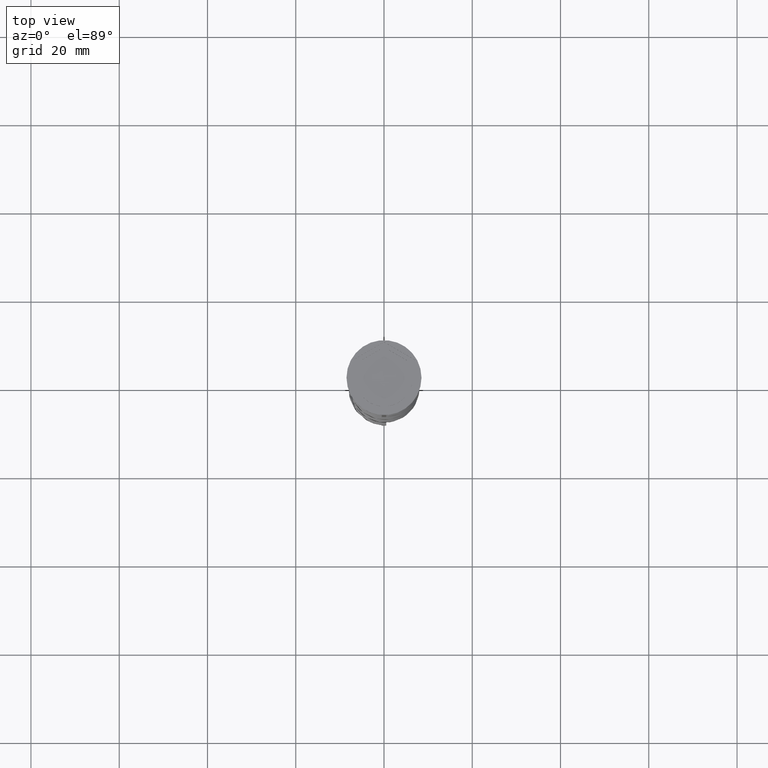
[diagram: clean part render]
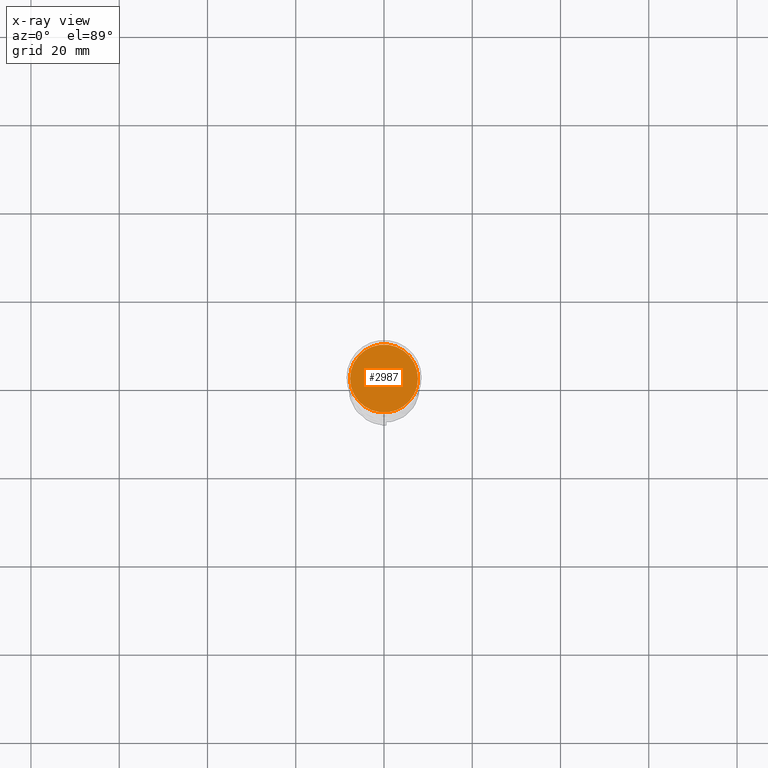
[diagram: x-ray — body ghosted, one internal face saturated and labeled with its STEP entity id]
A machine part, top view, then the same camera in x-ray: the body is ghosted and one INTERNAL B-rep face — a face not visible from any outside direction — is saturated and labeled: STEP entity #2987.
In plain terms, the highlighted planar face has unit normal (0, 0, -1).
Its self-contained STEP definition (entity closure, byte-faithful):
#33 = DIRECTION ( 'NONE',  ( -0.000000000000000000, -0.000000000000000000, 1.000000000000000000 ) ) ;
#76 = ORIENTED_EDGE ( 'NONE', *, *, #469, .T. ) ;
#86 = CIRCLE ( 'NONE', #3243, 7.700000000000001954 ) ;
#110 = ORIENTED_EDGE ( 'NONE', *, *, #3128, .T. ) ;
#278 = CARTESIAN_POINT ( 'NONE',  ( 7.700000000000001954, 9.613477373306725302E-16, -12.00000000000000000 ) ) ;
#296 = DIRECTION ( 'NONE',  ( 0.000000000000000000, 0.000000000000000000, -1.000000000000000000 ) ) ;
#404 = DIRECTION ( 'NONE',  ( -0.000000000000000000, -0.000000000000000000, 1.000000000000000000 ) ) ;
#469 = EDGE_CURVE ( 'NONE', #1453, #1937, #2308, .T. ) ;
#485 = AXIS2_PLACEMENT_3D ( 'NONE', #2699, #404, #994 ) ;
#560 = CARTESIAN_POINT ( 'NONE',  ( 0.000000000000000000, 0.000000000000000000, -12.00000000000000000 ) ) ;
#867 = DIRECTION ( 'NONE',  ( -1.000000000000000000, 0.000000000000000000, -0.000000000000000000 ) ) ;
#994 = DIRECTION ( 'NONE',  ( -1.000000000000000000, 0.000000000000000000, 0.000000000000000000 ) ) ;
#1183 = CARTESIAN_POINT ( 'NONE',  ( 0.000000000000000000, 0.000000000000000000, -12.00000000000000000 ) ) ;
#1344 = AXIS2_PLACEMENT_3D ( 'NONE', #560, #296, #867 ) ;
#1415 = FACE_OUTER_BOUND ( 'NONE', #3065, .T. ) ;
#1453 = VERTEX_POINT ( 'NONE', #278 ) ;
#1937 = VERTEX_POINT ( 'NONE', #2672 ) ;
#2272 = DIRECTION ( 'NONE',  ( -1.000000000000000000, 0.000000000000000000, 0.000000000000000000 ) ) ;
#2308 = CIRCLE ( 'NONE', #485, 7.700000000000001954 ) ;
#2672 = CARTESIAN_POINT ( 'NONE',  ( -7.700000000000001954, 0.000000000000000000, -12.00000000000000000 ) ) ;
#2699 = CARTESIAN_POINT ( 'NONE',  ( 0.000000000000000000, 0.000000000000000000, -12.00000000000000000 ) ) ;
#2987 = ADVANCED_FACE ( 'NONE', ( #1415 ), #3473, .F. ) ;
#3065 = EDGE_LOOP ( 'NONE', ( #110, #76 ) ) ;
#3128 = EDGE_CURVE ( 'NONE', #1937, #1453, #86, .T. ) ;
#3243 = AXIS2_PLACEMENT_3D ( 'NONE', #1183, #33, #2272 ) ;
#3473 = PLANE ( 'NONE',  #1344 ) ;